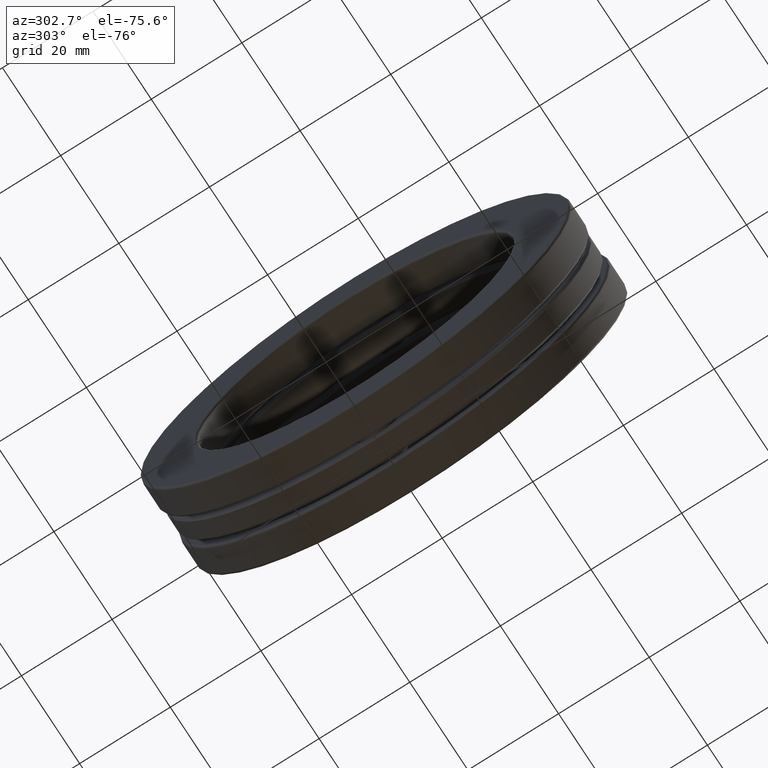
[diagram: clean part render]
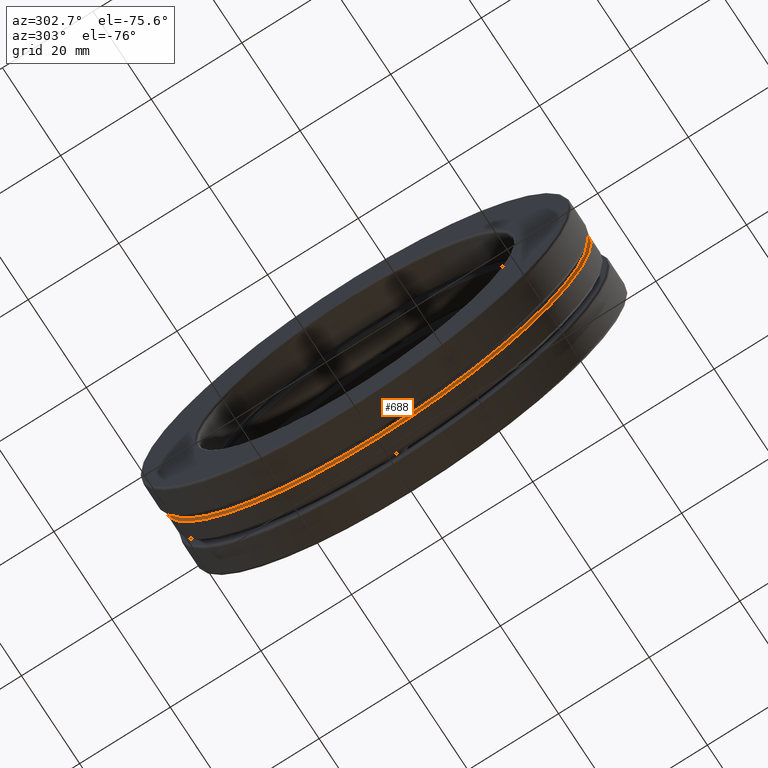
[diagram: same view with one face highlighted and labeled with its STEP entity id]
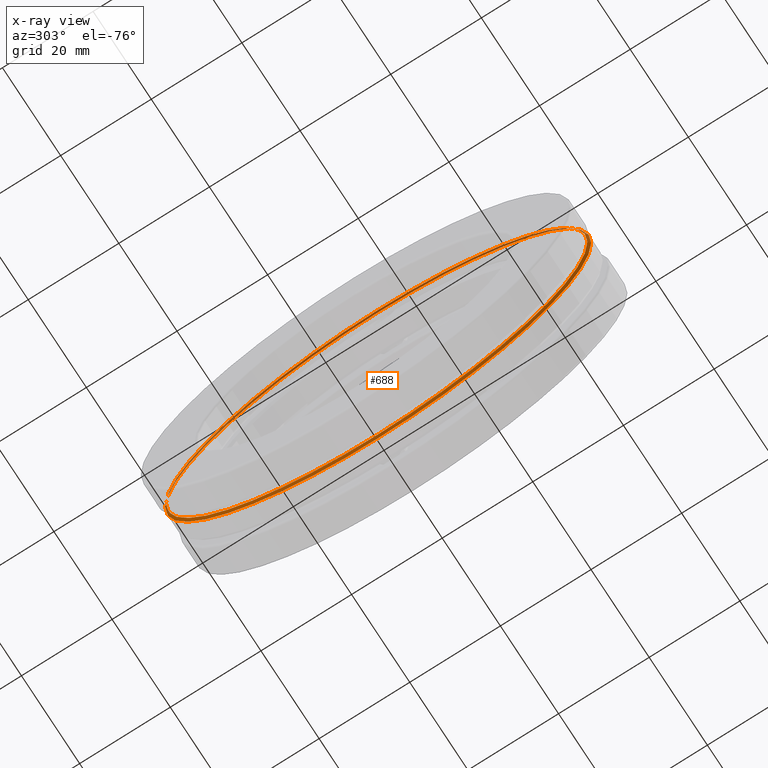
[diagram: x-ray of the same camera — body ghosted, the highlighted face saturated]
A machine part, auxiliary view. The second image highlights one B-rep face of the part: STEP entity #688.
The next image is the same camera in x-ray: the body ghosted, the highlighted face saturated — about 22% of this face is hidden behind the body in this view.
In plain terms, the highlighted conical surface has half-angle 45 deg.
Its self-contained STEP definition (entity closure, byte-faithful):
#7 = EDGE_CURVE ( 'NONE', #555, #555, #88, .T. ) ;
#48 = DIRECTION ( 'NONE',  ( -1.000000000000000000, -0.0000000000000000000, -0.0000000000000000000 ) ) ;
#74 = EDGE_CURVE ( 'NONE', #95, #95, #696, .T. ) ;
#88 = CIRCLE ( 'NONE', #793, 1.849999999999999600 ) ;
#95 = VERTEX_POINT ( 'NONE', #746 ) ;
#115 = CARTESIAN_POINT ( 'NONE',  ( -0.09837499999999997600, 0.0000000000000000000, 0.0000000000000000000 ) ) ;
#117 = CONICAL_SURFACE ( 'NONE', #398, 1.829999999999999600, 0.7853981633974500600 ) ;
#133 = EDGE_LOOP ( 'NONE', ( #660 ) ) ;
#156 = DIRECTION ( 'NONE',  ( 0.0000000000000000000, 0.0000000000000000000, 1.000000000000000000 ) ) ;
#199 = AXIS2_PLACEMENT_3D ( 'NONE', #443, #438, #369 ) ;
#241 = CARTESIAN_POINT ( 'NONE',  ( -0.07837499999999998600, 0.0000000000000000000, 1.849999999999999600 ) ) ;
#369 = DIRECTION ( 'NONE',  ( 0.0000000000000000000, 0.0000000000000000000, 1.000000000000000000 ) ) ;
#372 = DIRECTION ( 'NONE',  ( 1.000000000000000000, 0.0000000000000000000, 0.0000000000000000000 ) ) ;
#380 = DIRECTION ( 'NONE',  ( 0.0000000000000000000, 0.0000000000000000000, -1.000000000000000000 ) ) ;
#389 = ORIENTED_EDGE ( 'NONE', *, *, #7, .T. ) ;
#398 = AXIS2_PLACEMENT_3D ( 'NONE', #115, #372, #380 ) ;
#431 = CARTESIAN_POINT ( 'NONE',  ( -0.07837499999999998600, 0.0000000000000000000, 0.0000000000000000000 ) ) ;
#438 = DIRECTION ( 'NONE',  ( -1.000000000000000000, -0.0000000000000000000, -0.0000000000000000000 ) ) ;
#443 = CARTESIAN_POINT ( 'NONE',  ( -0.09837499999999997600, 0.0000000000000000000, 0.0000000000000000000 ) ) ;
#555 = VERTEX_POINT ( 'NONE', #241 ) ;
#660 = ORIENTED_EDGE ( 'NONE', *, *, #74, .F. ) ;
#670 = FACE_BOUND ( 'NONE', #133, .T. ) ;
#672 = FACE_OUTER_BOUND ( 'NONE', #769, .T. ) ;
#688 = ADVANCED_FACE ( 'NONE', ( #672, #670 ), #117, .T. ) ;
#696 = CIRCLE ( 'NONE', #199, 1.829999999999999600 ) ;
#746 = CARTESIAN_POINT ( 'NONE',  ( -0.09837499999999997600, 0.0000000000000000000, 1.829999999999999600 ) ) ;
#769 = EDGE_LOOP ( 'NONE', ( #389 ) ) ;
#793 = AXIS2_PLACEMENT_3D ( 'NONE', #431, #48, #156 ) ;